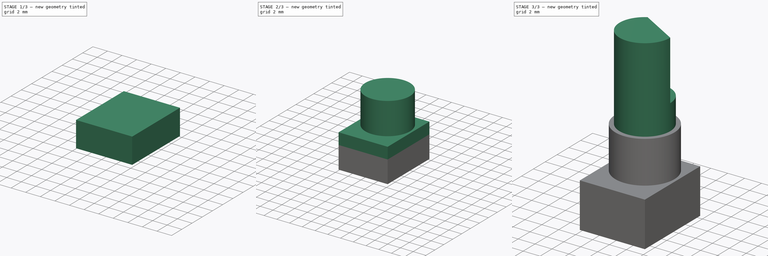
[diagram: build sequence overview — one tinted view per stage of 3, left to right]
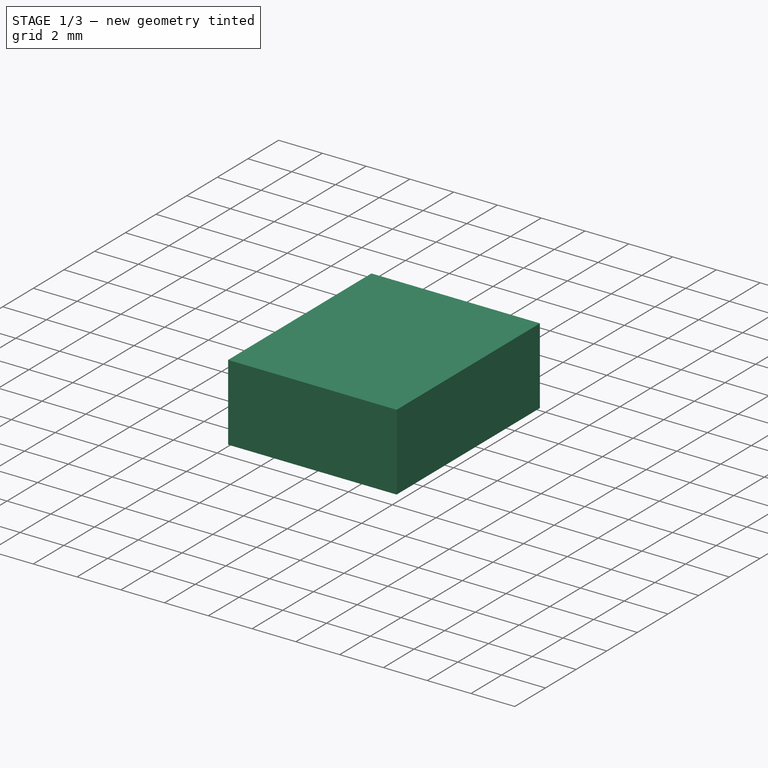
[diagram: stage 1 of 3 — iso view after this stage's code; geometry added in this stage tinted green]
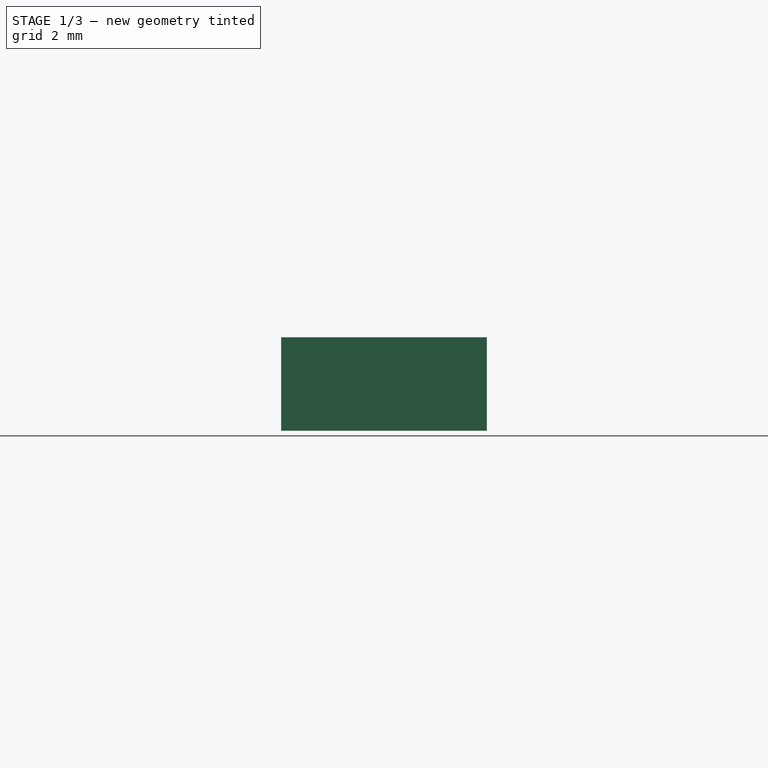
[diagram: stage 1 of 3 — front view after this stage's code; geometry added in this stage tinted green]
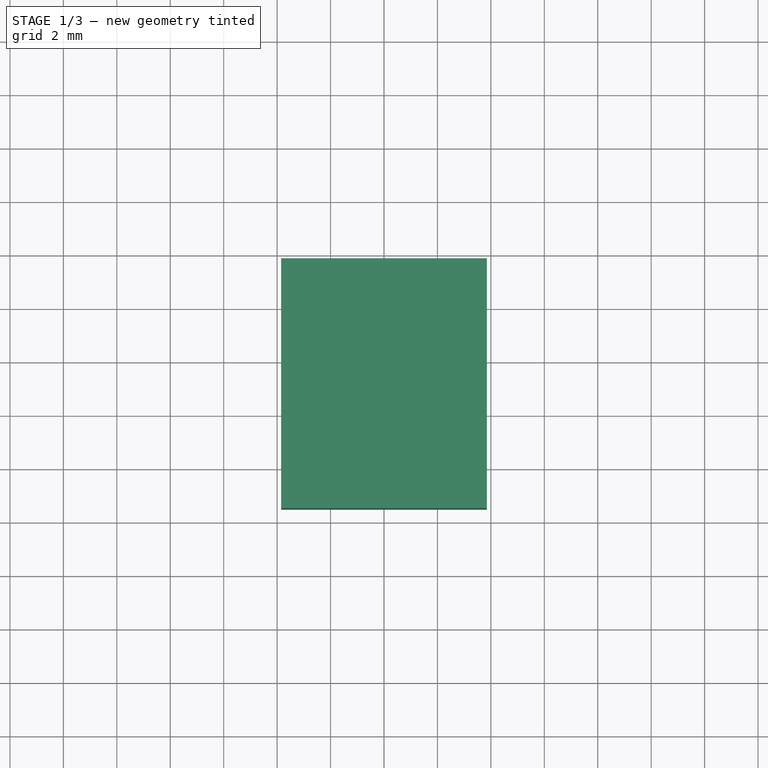
[diagram: stage 1 of 3 — top view after this stage's code; geometry added in this stage tinted green]
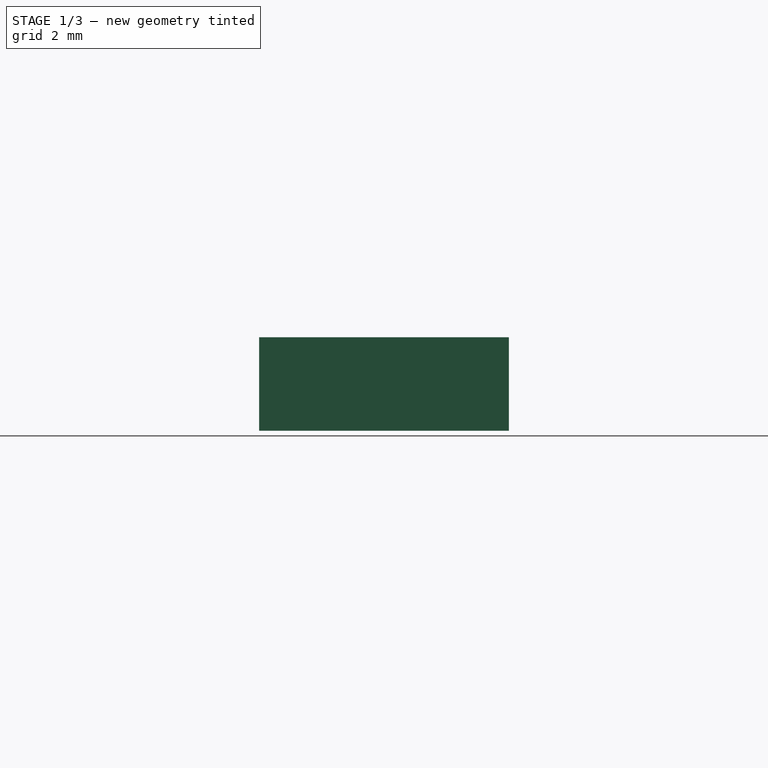
[diagram: stage 1 of 3 — right view after this stage's code; geometry added in this stage tinted green]
FCSTD DOCUMENT  (FreeCAD 0.19R16699 (Git))
Label: RD701F Master and Datums
License: All rights reserved
LicenseURL: http://en.wikipedia.org/wiki/All_rights_reserved
objects: Sketcher::SketchObject×8, PartDesign::Plane×6, PartDesign::Pad×6, PartDesign::Body×2, PartDesign::ShapeBinder×2
note: 30 computed .brp shape members not serialized (recipe doc carries the construction recipe); baked Part::Feature solids carry a one-line shape summary decoded from their .brp

FEATURE [Sketcher::SketchObject] Sketch  label="MasterSketch_XY"
  MapMode = 5
  Support = -> [XY_Plane]
  sketch-geometry (12):
    g0: LineSegment StartX=-3.85 StartY=3.85 StartZ=0 EndX=3.85 EndY=3.85 EndZ=0
    g1: LineSegment StartX=3.85 StartY=3.85 StartZ=0 EndX=3.85 EndY=-5.5 EndZ=0
    g2: LineSegment StartX=3.85 StartY=-5.5 StartZ=0 EndX=-3.85 EndY=-5.5 EndZ=0
    g3: LineSegment StartX=-3.85 StartY=-5.5 StartZ=0 EndX=-3.85 EndY=3.85 EndZ=0
    g4: GeomPoint X=3.85 Y=0 Z=0
    g5: GeomPoint X=-3.85 Y=0 Z=0
    g6: Circle [constr] CenterX=0 CenterY=0 CenterZ=0 NormalX=0 NormalY=0 NormalZ=1 AngleXU=0 Radius=3
    g7: Circle CenterX=0 CenterY=0 CenterZ=0 NormalX=0 NormalY=0 NormalZ=1 AngleXU=0 Radius=3.5
    g8: LineSegment [constr] StartX=0 StartY=0 StartZ=0 EndX=5.87292 EndY=10.1722 EndZ=0
    g9: LineSegment [constr] StartX=-1.5 StartY=2.59808 StartZ=0 EndX=3 EndY=-5.82532e-07 EndZ=0
    g10: ArcOfCircle CenterX=0 CenterY=0 CenterZ=0 NormalX=0 NormalY=0 NormalZ=1 AngleXU=0 Radius=3 StartAngle=2.0944 EndAngle=6.28319
    g11: LineSegment StartX=-1.5 StartY=2.59808 StartZ=0 EndX=3 EndY=-5.82532e-07 EndZ=0
  constraints (28):
    c: Coincident(g0,g1)
    c: Coincident(g1,g2)
    c: Coincident(g2,g3)
    c: Coincident(g3,g0)
    c: Horizontal(g2)
    c: Vertical(g1)
    c: Vertical(g3)
    c: Symmetric(g0,g0,g-2)
    c: PointOnObject(g4,g1)
    c: PointOnObject(g5,g3)
    c: PointOnObject(g4,g-1)
    c: PointOnObject(g5,g-1)
    c: DistanceX(g0,g0) = 7.7
    c: DistanceY(g4,g0) = 3.85
    c: DistanceY(g1,g4) = 5.5
    c: Coincident(g6,g-1)
    c: Coincident(g7,g6)
    c: Radius(g6) = 3
    c: Radius(g7) = 3.5
    c: Coincident(g8,g6)
    c: Angle(g8,g-2) = 0.523599
    c: Symmetric(g9,g9,g8)
    c: Distance(g6,g9) = 1.5
    c: Coincident(g10,g7)
    c: Coincident(g10,g9)
    c: Coincident(g10,g9)
    c: Coincident(g11,g10)
    c: Coincident(g11,g10)
FEATURE [Sketcher::SketchObject] Sketch001  label="MasterSketch_YZ"
  MapMode = 5
  Placement = pos=(0,0,0) rot=(0.57735,0.57735,0.57735;2.0944rad)
  Support = -> [YZ_Plane]
  sketch-geometry (26):
    g0: GeomPoint X=0 Y=0 Z=0
    g1: LineSegment StartX=-5.5 StartY=0 StartZ=0 EndX=3.85 EndY=0 EndZ=0
    g2: LineSegment StartX=3.85 StartY=0 StartZ=0 EndX=3.85 EndY=1 EndZ=0
    g3: LineSegment StartX=3.85 StartY=1 StartZ=0 EndX=-5.5 EndY=1 EndZ=0
    g4: LineSegment StartX=-5.5 StartY=1 StartZ=0 EndX=-5.5 EndY=0 EndZ=0
    g5: LineSegment StartX=3.85 StartY=1 StartZ=0 EndX=-5.5 EndY=1 EndZ=0
    g6: LineSegment StartX=-5.5 StartY=1 StartZ=0 EndX=-5.5 EndY=3.5 EndZ=0
    g7: LineSegment StartX=-5.5 StartY=3.5 StartZ=0 EndX=3.85 EndY=3.5 EndZ=0
    g8: LineSegment StartX=3.85 StartY=3.5 StartZ=0 EndX=3.85 EndY=1 EndZ=0
    g9: LineSegment StartX=-5.5 StartY=3.5 StartZ=0 EndX=3.85 EndY=3.5 EndZ=0
    g10: LineSegment StartX=3.85 StartY=3.5 StartZ=0 EndX=3.85 EndY=5.3 EndZ=0
    g11: LineSegment StartX=3.85 StartY=5.3 StartZ=0 EndX=-5.5 EndY=5.3 EndZ=0
    g12: LineSegment StartX=-5.5 StartY=5.3 StartZ=0 EndX=-5.5 EndY=3.5 EndZ=0
    g13: GeomPoint X=0 Y=0 Z=0
    g14: LineSegment StartX=-3.5 StartY=5.3 StartZ=0 EndX=3.5 EndY=5.3 EndZ=0
    g15: LineSegment StartX=3.5 StartY=5.3 StartZ=0 EndX=3.5 EndY=10.3 EndZ=0
    g16: LineSegment StartX=3.5 StartY=10.3 StartZ=0 EndX=-3.5 EndY=10.3 EndZ=0
    g17: LineSegment StartX=-3.5 StartY=10.3 StartZ=0 EndX=-3.5 EndY=5.3 EndZ=0
    g18: LineSegment StartX=-3 StartY=10.3 StartZ=0 EndX=3 EndY=10.3 EndZ=0
    g19: LineSegment StartX=3 StartY=10.3 StartZ=0 EndX=3 EndY=20.3 EndZ=0
    g20: LineSegment StartX=3 StartY=20.3 StartZ=0 EndX=-3 EndY=20.3 EndZ=0
    g21: LineSegment StartX=-3 StartY=20.3 StartZ=0 EndX=-3 EndY=10.3 EndZ=0
    g22: LineSegment StartX=-1.5 StartY=20.3 StartZ=0 EndX=3 EndY=20.3 EndZ=0
    g23: LineSegment StartX=3 StartY=20.3 StartZ=0 EndX=3 EndY=13.3 EndZ=0
    g24: LineSegment StartX=3 StartY=13.3 StartZ=0 EndX=-1.5 EndY=13.3 EndZ=0
    g25: LineSegment StartX=-1.5 StartY=13.3 StartZ=0 EndX=-1.5 EndY=20.3 EndZ=0
  constraints (68):
    c: DistanceX(g1,g0) = 5.5
    c: Coincident(g0,g-1)
    c: Coincident(g1,g2)
    c: Coincident(g2,g3)
    c: Coincident(g3,g4)
    c: Coincident(g4,g1)
    c: Horizontal(g1)
    c: Horizontal(g3)
    c: Vertical(g2)
    c: Vertical(g4)
    c: Coincident(g5,g6)
    c: Coincident(g6,g7)
    c: Coincident(g7,g8)
    c: Coincident(g8,g5)
    c: Horizontal(g7)
    c: Vertical(g6)
    c: Vertical(g8)
    c: Coincident(g5,g2)
    c: Coincident(g9,g10)
    c: Coincident(g10,g11)
    c: Coincident(g11,g12)
    c: Coincident(g12,g9)
    c: Horizontal(g11)
    c: Vertical(g10)
    c: Vertical(g12)
    c: Coincident(g9,g6)
    c: Coincident(g5,g3)
    c: Coincident(g9,g7)
    c: DistanceY(g1,g11) = 5.3  'bodytotalpadlength'
    c: DistanceY(g2,g2) = 1  'bodybottompadlength'
    c: DistanceY(g8,g8) = 2.5  'bodymidpadlength'
    c: PointOnObject(g13,g1)
    c: Coincident(g13,g0)
    c: DistanceX(g0,g1) = 3.85
    c: Coincident(g14,g15)
    c: Coincident(g15,g16)
    c: Coincident(g16,g17)
    c: Coincident(g17,g14)
    c: Horizontal(g16)
    c: Vertical(g15)
    c: Vertical(g17)
    c: PointOnObject(g14,g11)
    c: Coincident(g18,g19)
    c: Coincident(g19,g20)
    c: Coincident(g20,g21)
    c: Coincident(g21,g18)
    c: Horizontal(g18)
    c: Vertical(g19)
    c: Vertical(g21)
    c: PointOnObject(g18,g16)
    c: Symmetric(g14,g14,g-2)
    c: Symmetric(g19,g20,g-2)
    c: DistanceY(g15,g15) = 5  'threadpadlength'
    c: DistanceY(g14,g19) = 15  'shaftpadlength'
    c: DistanceX(g16,g16) = 7
    c: DistanceX(g20,g20) = 6
    c: Coincident(g22,g23)
    c: Coincident(g23,g24)
    c: Coincident(g24,g25)
    c: Coincident(g25,g22)
    c: Horizontal(g22)
    c: Horizontal(g24)
    c: Vertical(g23)
    c: Vertical(g25)
    c: PointOnObject(g22,g20)
    c: PointOnObject(g23,g19)
    c: DistanceY(g25,g25) = 7  'shaftnotchdepth'
    c: DistanceX(g22,g19) = 4.5
FEATURE [PartDesign::Body] Body  label="MasterBody"
  Group = -> [Sketch,Sketch001]
  Origin = -> Origin
FEATURE [PartDesign::ShapeBinder] ShapeBinder  label="MasterSketch_XY_ShapeBinder"
  Support = -> [Sketch]
  TraceSupport = false
FEATURE [PartDesign::ShapeBinder] ShapeBinder001  label="MasterSketch_YZ_ShapeBinder"
  Placement = pos=(0,0,0) rot=(0.57735,0.57735,0.57735;2.0944rad)
  Support = -> [Sketch001]
  TraceSupport = false
FEATURE [PartDesign::Plane] DatumPlane
  Length = 24
  MapMode = 5
  ResizeMode = 0
  Support = -> [XY_Plane001]
  Width = 24
FEATURE [Sketcher::SketchObject] Sketch002
  ExternalGeometry = -> [ShapeBinder]
  MapMode = 5
  Support = -> [DatumPlane]
  sketch-geometry (4):
    g0: LineSegment StartX=-3.85 StartY=3.85 StartZ=0 EndX=3.85 EndY=3.85 EndZ=0
    g1: LineSegment StartX=3.85 StartY=3.85 StartZ=0 EndX=3.85 EndY=-5.5 EndZ=0
    g2: LineSegment StartX=3.85 StartY=-5.5 StartZ=0 EndX=-3.85 EndY=-5.5 EndZ=0
    g3: LineSegment StartX=-3.85 StartY=-5.5 StartZ=0 EndX=-3.85 EndY=3.85 EndZ=0
  constraints (10):
    c: Coincident(g0,g1)
    c: Coincident(g1,g2)
    c: Coincident(g2,g3)
    c: Coincident(g3,g0)
    c: Horizontal(g0)
    c: Horizontal(g2)
    c: Vertical(g1)
    c: Vertical(g3)
    c: Coincident(g0,g-4)
    c: Coincident(g1,g-6)
FEATURE [PartDesign::Pad] Pad
  Length = 1
  Length2 = 100
  Profile = -> Sketch002
  Type = 0
  expr: Length = MasterSketch_YZ.Constraints.bodybottompadlength
FEATURE [PartDesign::Plane] DatumPlane001
  AttachmentOffset = pos=(0,0,1) rot=(0,0,1;0rad)
  Length = 24
  MapMode = 5
  Placement = pos=(0,0,1) rot=(0,0,1;0rad)
  ResizeMode = 0
  Support = -> [XY_Plane001]
  Width = 24
  expr: AttachmentOffset.Base.z = MasterSketch_YZ.Constraints.bodybottompadlength
FEATURE [Sketcher::SketchObject] Sketch003
  ExternalGeometry = -> [ShapeBinder]
  MapMode = 5
  Placement = pos=(0,0,1) rot=(0,0,1;0rad)
  Support = -> [DatumPlane001]
  sketch-geometry (4):
    g0: LineSegment StartX=-3.85 StartY=3.85 StartZ=0 EndX=3.85 EndY=3.85 EndZ=0
    g1: LineSegment StartX=3.85 StartY=3.85 StartZ=0 EndX=3.85 EndY=-5.5 EndZ=0
    g2: LineSegment StartX=3.85 StartY=-5.5 StartZ=0 EndX=-3.85 EndY=-5.5 EndZ=0
    g3: LineSegment StartX=-3.85 StartY=-5.5 StartZ=0 EndX=-3.85 EndY=3.85 EndZ=0
  constraints (10):
    c: Coincident(g0,g1)
    c: Coincident(g1,g2)
    c: Coincident(g2,g3)
    c: Coincident(g3,g0)
    c: Horizontal(g0)
    c: Horizontal(g2)
    c: Vertical(g1)
    c: Vertical(g3)
    c: Coincident(g0,g-4)
    c: Coincident(g1,g-6)
FEATURE [PartDesign::Pad] Pad001
  BaseFeature = -> Pad
  Length = 2.5
  Length2 = 100
  Profile = -> Sketch003
  Type = 0
  expr: Length = MasterSketch_YZ.Constraints.bodymidpadlength
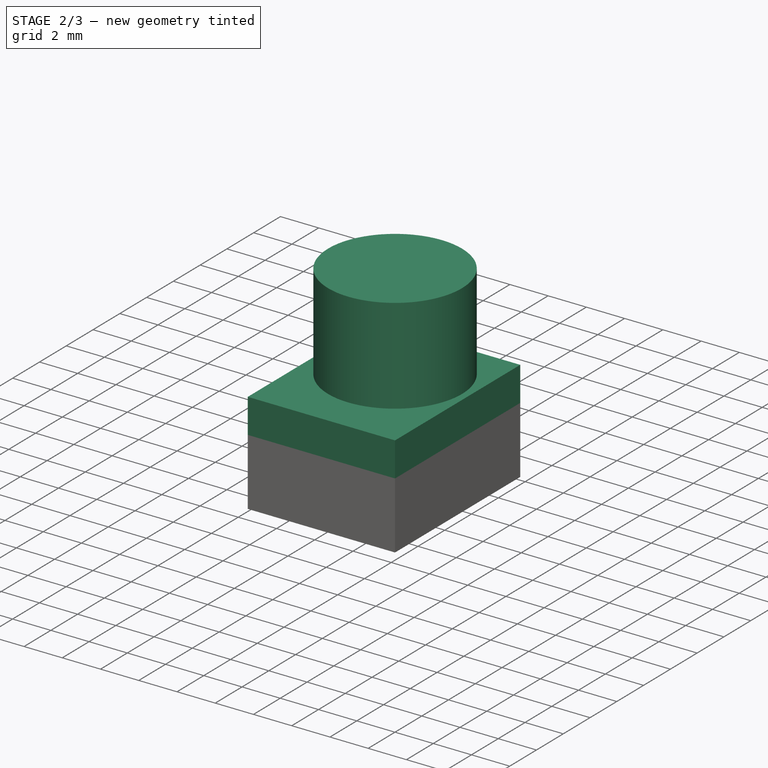
[diagram: stage 2 of 3 — iso view after this stage's code; geometry added in this stage tinted green]
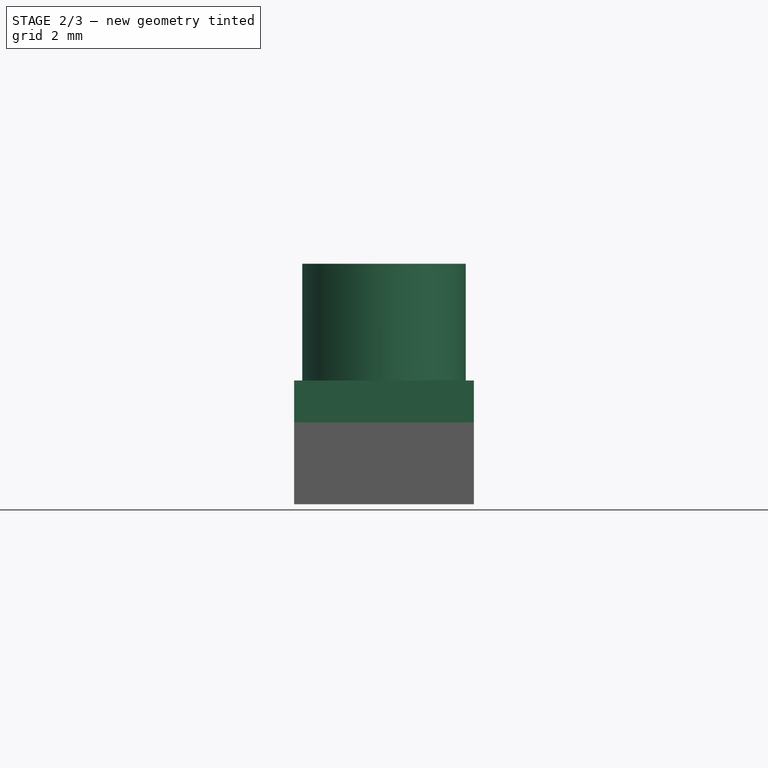
[diagram: stage 2 of 3 — front view after this stage's code; geometry added in this stage tinted green]
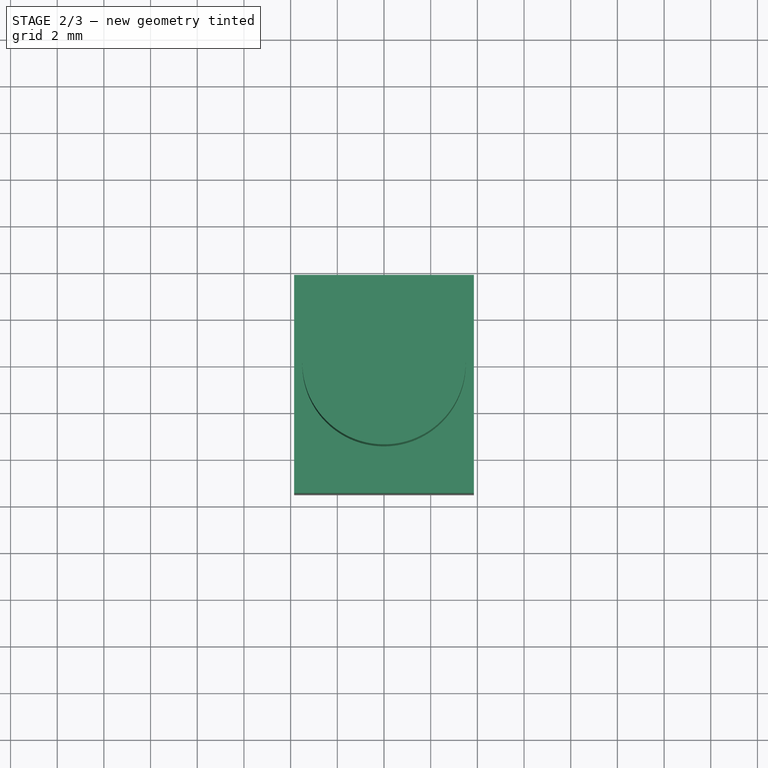
[diagram: stage 2 of 3 — top view after this stage's code; geometry added in this stage tinted green]
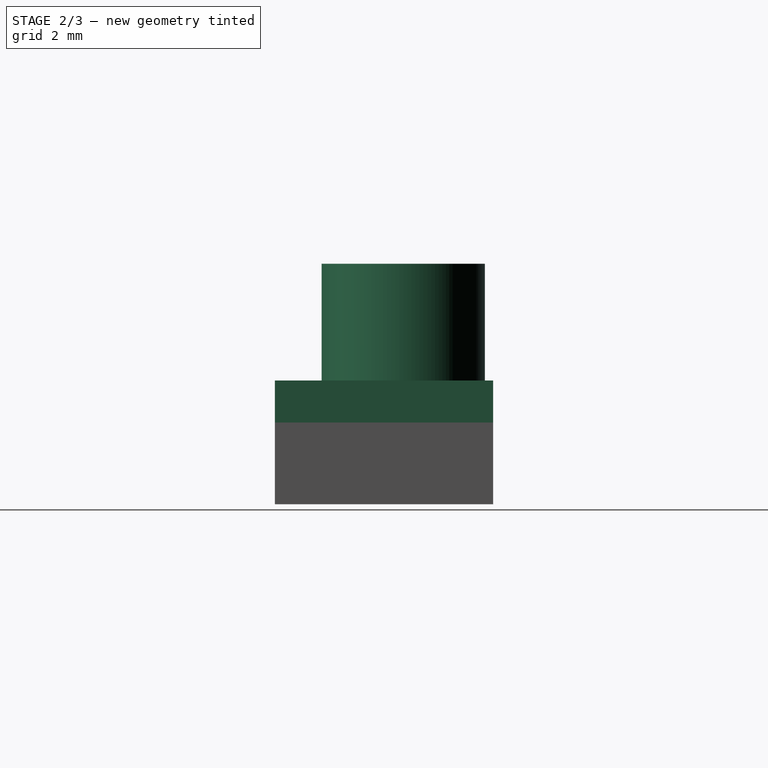
[diagram: stage 2 of 3 — right view after this stage's code; geometry added in this stage tinted green]
FEATURE [PartDesign::Plane] DatumPlane002
  AttachmentOffset = pos=(0,0,3.5) rot=(0,0,1;0rad)
  Length = 24
  MapMode = 5
  Placement = pos=(0,0,3.5) rot=(0,0,1;0rad)
  ResizeMode = 0
  Support = -> [XY_Plane001]
  Width = 24
  expr: AttachmentOffset.Base.z = MasterSketch_YZ.Constraints.bodybottompadlength + MasterSketch_YZ.Constraints.bodymidpadlength
FEATURE [Sketcher::SketchObject] Sketch004
  ExternalGeometry = -> [ShapeBinder]
  MapMode = 5
  Placement = pos=(0,0,3.5) rot=(0,0,1;0rad)
  Support = -> [DatumPlane002]
  sketch-geometry (4):
    g0: LineSegment StartX=-3.85 StartY=3.85 StartZ=0 EndX=3.85 EndY=3.85 EndZ=0
    g1: LineSegment StartX=3.85 StartY=3.85 StartZ=0 EndX=3.85 EndY=-5.5 EndZ=0
    g2: LineSegment StartX=3.85 StartY=-5.5 StartZ=0 EndX=-3.85 EndY=-5.5 EndZ=0
    g3: LineSegment StartX=-3.85 StartY=-5.5 StartZ=0 EndX=-3.85 EndY=3.85 EndZ=0
  constraints (10):
    c: Coincident(g0,g1)
    c: Coincident(g1,g2)
    c: Coincident(g2,g3)
    c: Coincident(g3,g0)
    c: Horizontal(g0)
    c: Horizontal(g2)
    c: Vertical(g1)
    c: Vertical(g3)
    c: Coincident(g0,g-4)
    c: Coincident(g1,g-6)
FEATURE [PartDesign::Pad] Pad002
  BaseFeature = -> Pad001
  Length = 1.8
  Length2 = 100
  Profile = -> Sketch004
  Type = 0
  expr: Length = MasterSketch_YZ.Constraints.bodytotalpadlength - MasterSketch_YZ.Constraints.bodymidpadlength - MasterSketch_YZ.Constraints.bodybottompadlength
FEATURE [PartDesign::Plane] DatumPlane003
  AttachmentOffset = pos=(0,0,5.3) rot=(0,0,1;0rad)
  Length = 24
  MapMode = 5
  Placement = pos=(0,0,5.3) rot=(0,0,1;0rad)
  ResizeMode = 0
  Support = -> [XY_Plane001]
  Width = 24
  expr: AttachmentOffset.Base.z = MasterSketch_YZ.Constraints.bodytotalpadlength
FEATURE [Sketcher::SketchObject] Sketch005
  ExternalGeometry = -> [ShapeBinder]
  MapMode = 5
  Placement = pos=(0,0,5.3) rot=(0,0,1;0rad)
  Support = -> [DatumPlane003]
  sketch-geometry (1):
    g0: Circle CenterX=0 CenterY=0 CenterZ=0 NormalX=0 NormalY=0 NormalZ=1 AngleXU=0 Radius=3.5
  constraints (2):
    c: Coincident(g0,g-1)
    c: Tangent(g0,g-3)
FEATURE [PartDesign::Pad] Pad003
  BaseFeature = -> Pad002
  Length = 5
  Length2 = 100
  Profile = -> Sketch005
  Type = 0
  expr: Length = MasterSketch_YZ.Constraints.threadpadlength
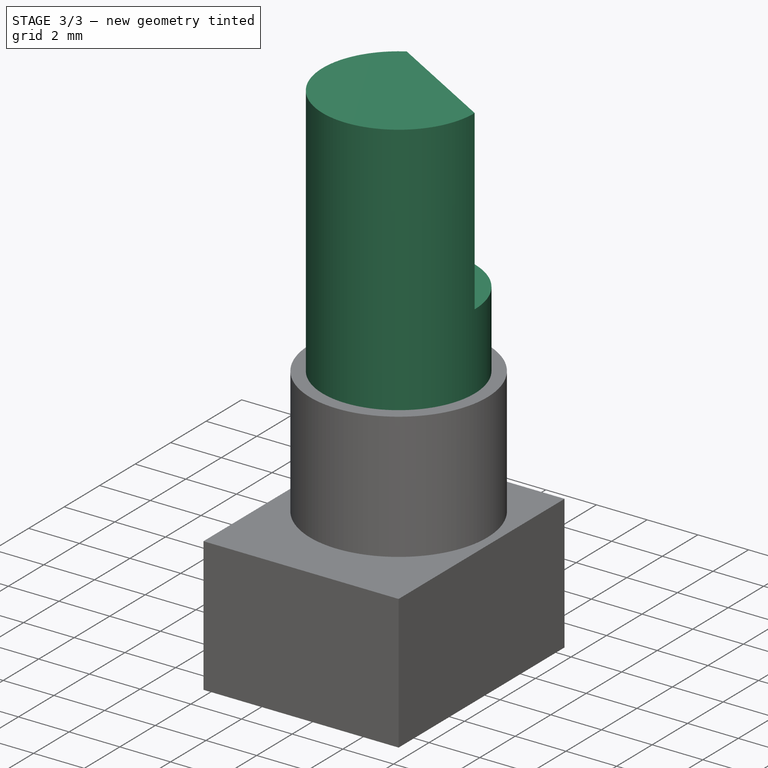
[diagram: stage 3 of 3 — iso view after this stage's code; geometry added in this stage tinted green]
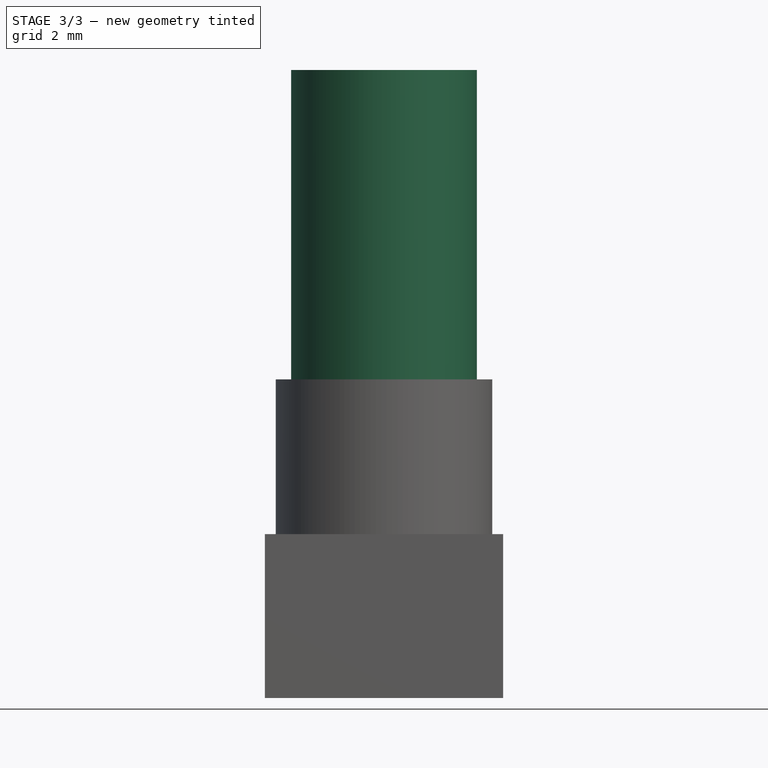
[diagram: stage 3 of 3 — front view after this stage's code; geometry added in this stage tinted green]
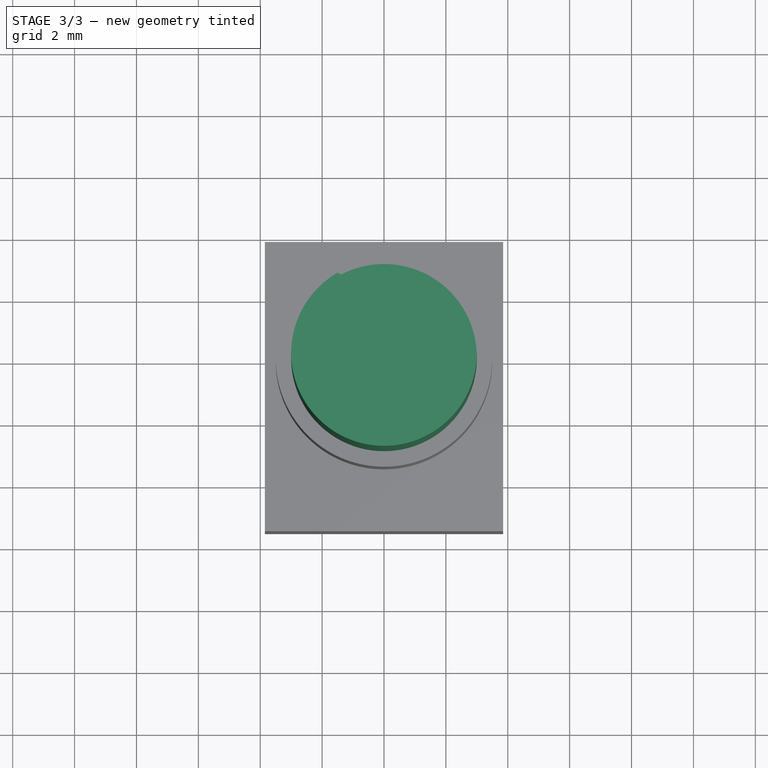
[diagram: stage 3 of 3 — top view after this stage's code; geometry added in this stage tinted green]
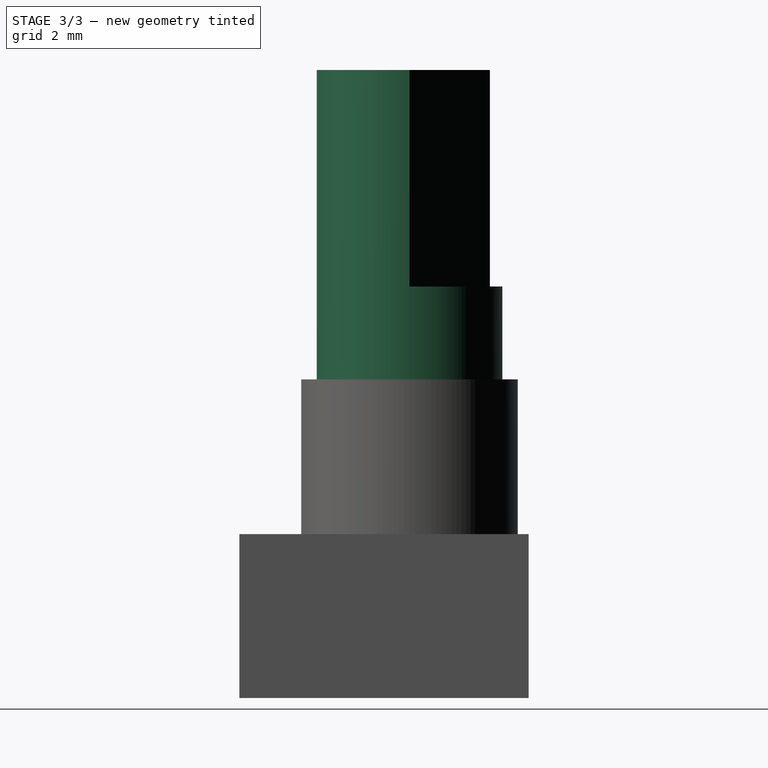
[diagram: stage 3 of 3 — right view after this stage's code; geometry added in this stage tinted green]
FEATURE [PartDesign::Plane] DatumPlane004
  AttachmentOffset = pos=(0,0,10.3) rot=(0,0,1;0rad)
  Length = 24
  MapMode = 5
  Placement = pos=(0,0,10.3) rot=(0,0,1;0rad)
  ResizeMode = 0
  Support = -> [XY_Plane001]
  Width = 24
  expr: AttachmentOffset.Base.z = MasterSketch_YZ.Constraints.bodytotalpadlength + MasterSketch_YZ.Constraints.threadpadlength
FEATURE [Sketcher::SketchObject] Sketch006
  ExternalGeometry = -> [ShapeBinder]
  MapMode = 5
  Placement = pos=(0,0,10.3) rot=(0,0,1;0rad)
  Support = -> [DatumPlane004]
  sketch-geometry (1):
    g0: Circle CenterX=0 CenterY=0 CenterZ=0 NormalX=0 NormalY=0 NormalZ=1 AngleXU=0 Radius=3
  constraints (2):
    c: Coincident(g0,g-1)
    c: PointOnObject(g-3,g0)
FEATURE [PartDesign::Pad] Pad004
  BaseFeature = -> Pad003
  Length = 3
  Length2 = 100
  Profile = -> Sketch006
  Type = 0
  expr: Length = MasterSketch_YZ.Constraints.shaftpadlength - MasterSketch_YZ.Constraints.threadpadlength - MasterSketch_YZ.Constraints.shaftnotchdepth
FEATURE [PartDesign::Plane] DatumPlane005
  AttachmentOffset = pos=(0,0,13.3) rot=(0,0,1;0rad)
  Length = 24
  MapMode = 5
  Placement = pos=(0,0,13.3) rot=(0,0,1;0rad)
  ResizeMode = 0
  Support = -> [XY_Plane001]
  Width = 24
  expr: AttachmentOffset.Base.z = MasterSketch_YZ.Constraints.bodytotalpadlength + MasterSketch_YZ.Constraints.shaftpadlength - MasterSketch_YZ.Constraints.shaftnotchdepth
FEATURE [Sketcher::SketchObject] Sketch007
  ExternalGeometry = -> [ShapeBinder]
  MapMode = 5
  Placement = pos=(0,0,13.3) rot=(0,0,1;0rad)
  Support = -> [DatumPlane005]
  sketch-geometry (2):
    g0: ArcOfCircle CenterX=0 CenterY=0 CenterZ=0 NormalX=0 NormalY=0 NormalZ=1 AngleXU=0 Radius=3 StartAngle=2.0944 EndAngle=6.28319
    g1: LineSegment StartX=-1.5 StartY=2.59808 StartZ=0 EndX=3 EndY=-5.82532e-07 EndZ=0
  constraints (5):
    c: Coincident(g0,g-1)
    c: Coincident(g0,g-3)
    c: Coincident(g0,g-3)
    c: Coincident(g1,g0)
    c: Coincident(g1,g0)
FEATURE [PartDesign::Pad] Pad005
  BaseFeature = -> Pad004
  Length = 7
  Length2 = 100
  Profile = -> Sketch007
  Type = 0
  expr: Length = MasterSketch_YZ.Constraints.shaftnotchdepth
FEATURE [PartDesign::Body] Body001  label="RD701F-15F"
  Group = -> [ShapeBinder,ShapeBinder001,DatumPlane,Sketch002,Pad,DatumPlane001,Sketch003,Pad001,DatumPlane002,Sketch004,Pad002,DatumPlane003,Sketch005,Pad003,DatumPlane004,Sketch006,Pad004,DatumPlane005,Sketch007,Pad005]
  Origin = -> Origin001
  Tip = -> Pad005
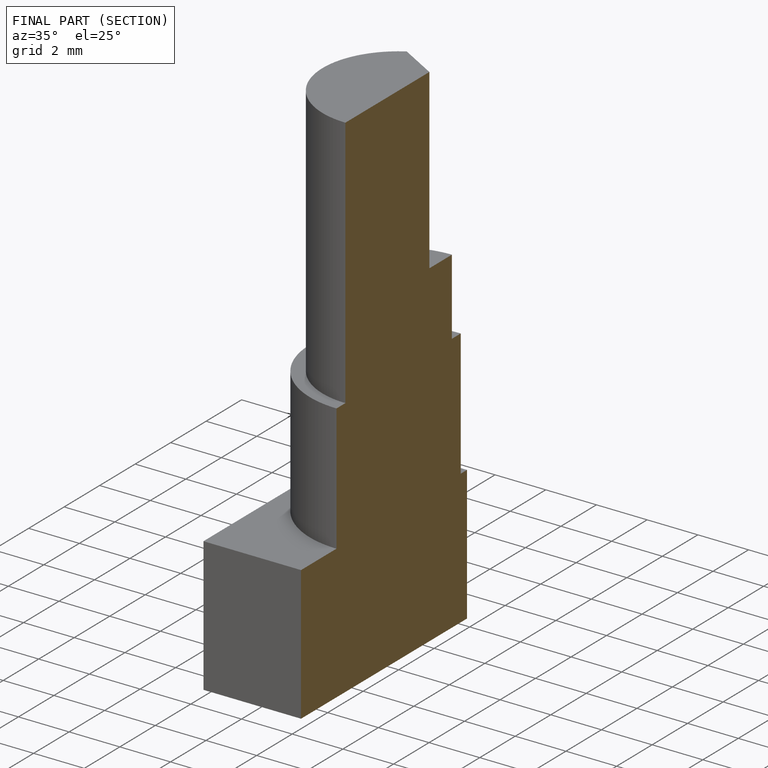
[diagram: finished part — half-section view (interior)]
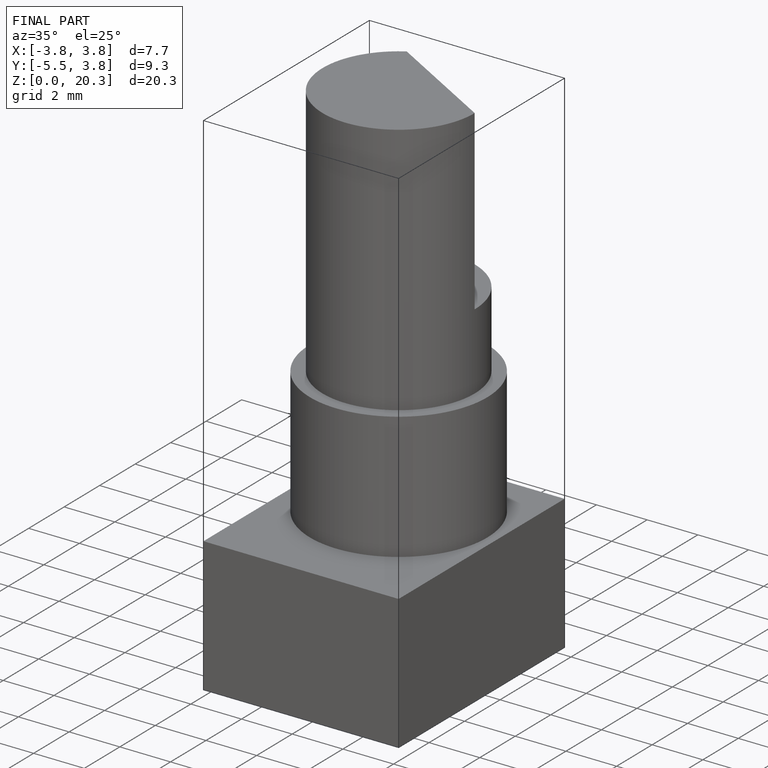
[diagram: finished part — iso view with bounding-box wireframe]
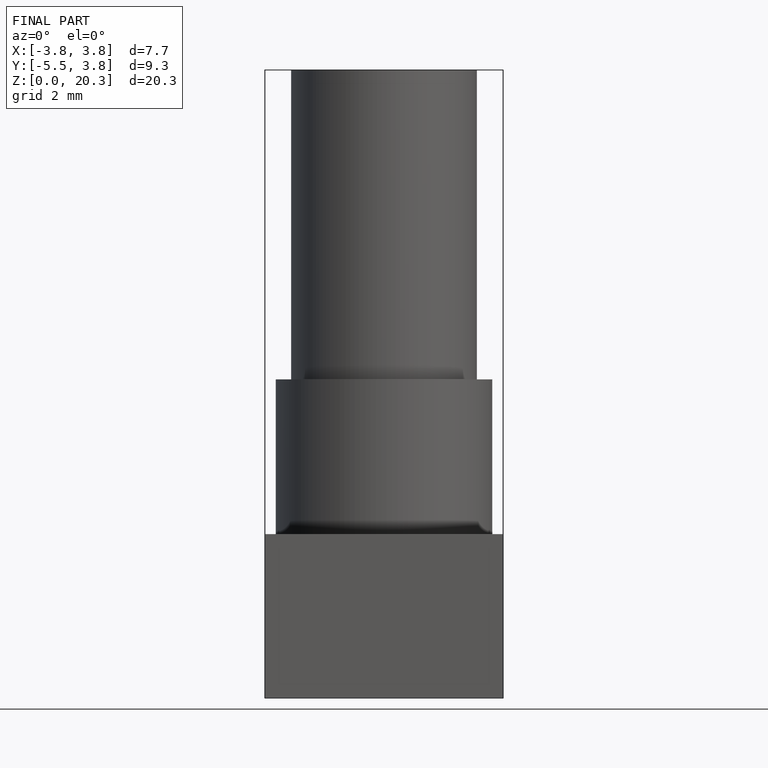
[diagram: finished part — front view with bounding-box wireframe]
